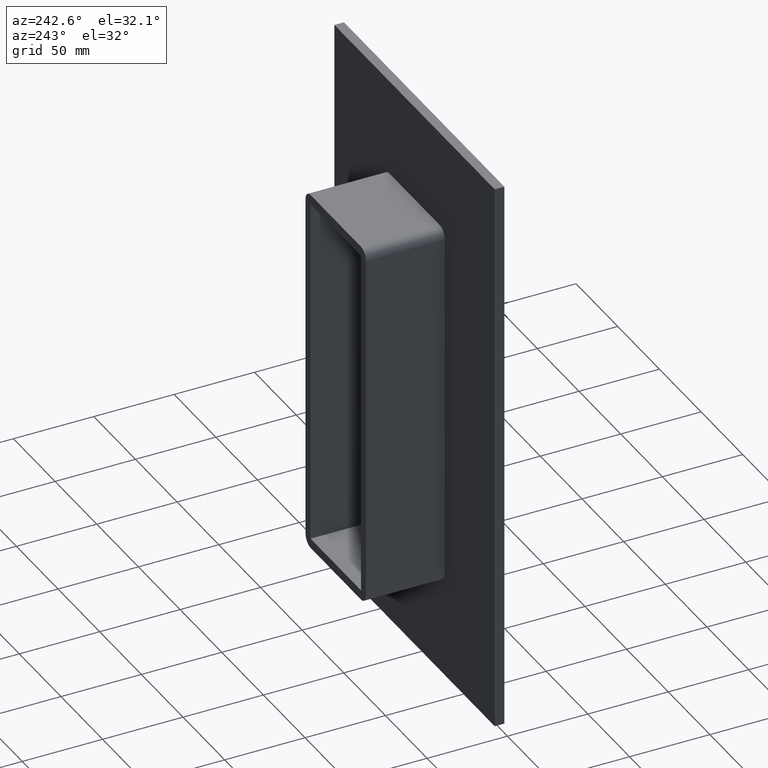
[diagram: clean part render]
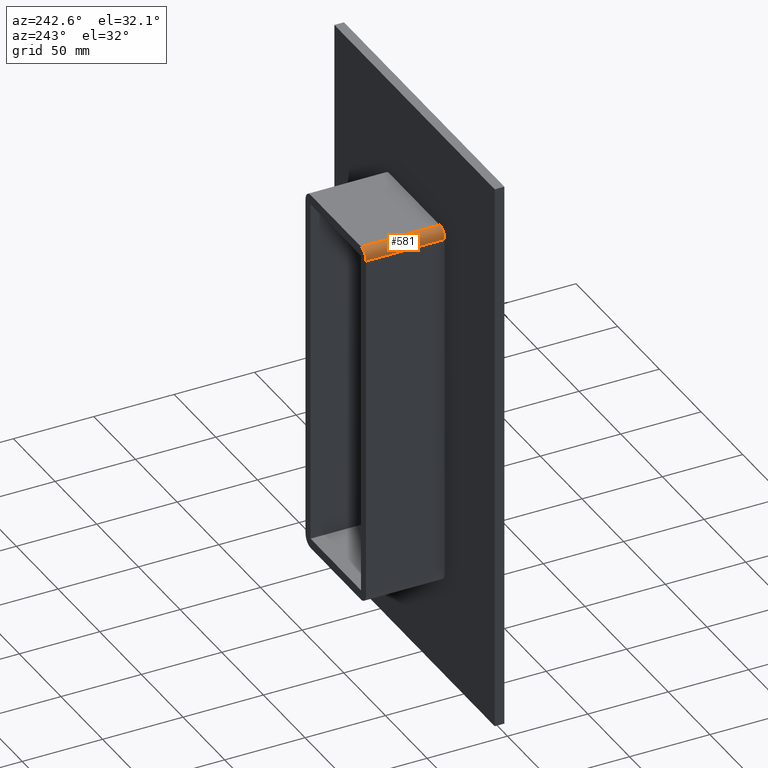
[diagram: same view with one face highlighted and labeled with its STEP entity id]
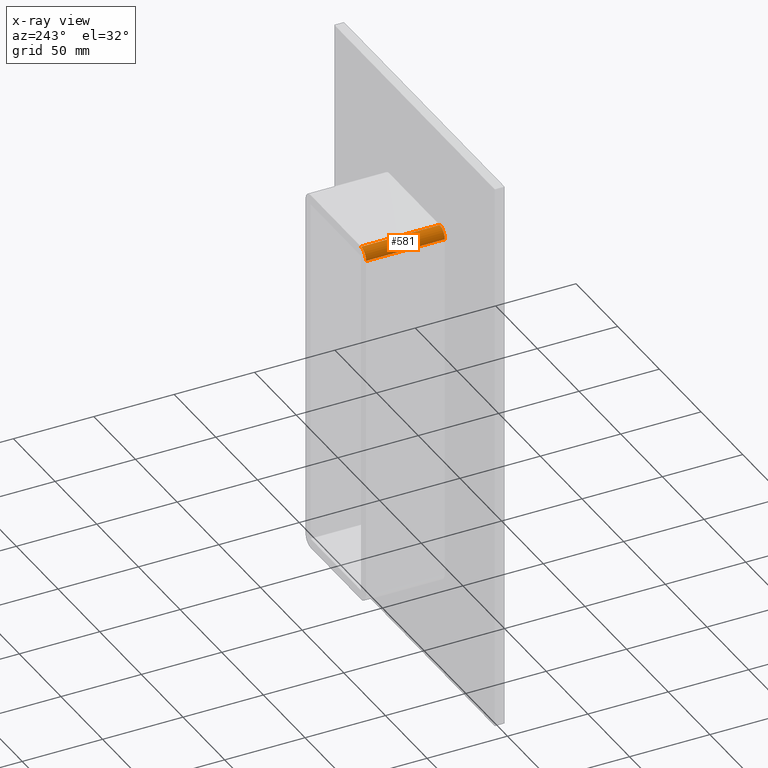
[diagram: x-ray of the same camera — body ghosted, the highlighted face saturated]
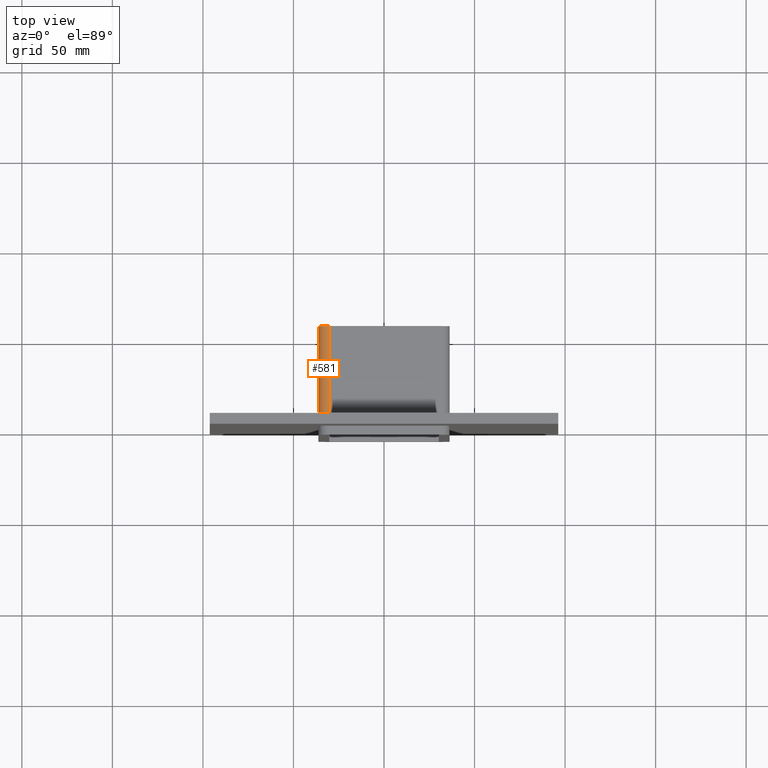
[diagram: same view with one face highlighted and labeled with its STEP entity id]
A machine part, auxiliary view. The second image highlights one B-rep face of the part: STEP entity #581.
The next image is the same camera in x-ray: the body ghosted, the highlighted face saturated — about 0% of this face is hidden behind the body in this view.
A second angle (top view) of the same face is appended — the face is thin or edge-on in the first view.
In plain terms, the highlighted cylindrical surface (edge-blend (fillet) strip) has radius 6 mm, axis along (0, 1, 0).
Its self-contained STEP definition (entity closure, byte-faithful):
#118=CARTESIAN_POINT('',(-30.249999999999986,6.000000000000001,115.00000000000003));
#119=VERTEX_POINT('',#118);
#126=CARTESIAN_POINT('',(-36.25,6.000000000000001,109.00000000000006));
#127=VERTEX_POINT('',#126);
#128=CARTESIAN_POINT('',(-30.249999999999986,6.000000000000001,109.00000000000006));
#129=DIRECTION('',(0.0,1.0,0.0));
#130=DIRECTION('',(-1.0,0.0,0.0));
#131=AXIS2_PLACEMENT_3D('',#128,#129,#130);
#132=CIRCLE('',#131,6.000000000000014);
#133=EDGE_CURVE('',#127,#119,#132,.T.);
#490=CARTESIAN_POINT('',(-36.25,55.0,109.00000000000006));
#491=VERTEX_POINT('',#490);
#492=CARTESIAN_POINT('',(-36.25,6.000000000000001,109.00000000000006));
#493=DIRECTION('',(0.0,1.0,0.0));
#494=VECTOR('',#493,49.0);
#495=LINE('',#492,#494);
#496=EDGE_CURVE('',#127,#491,#495,.T.);
#557=CARTESIAN_POINT('',(-30.249999999999986,0.0,109.00000000000006));
#558=DIRECTION('',(0.0,1.0,0.0));
#559=DIRECTION('',(-1.0,0.0,0.0));
#560=AXIS2_PLACEMENT_3D('',#557,#558,#559);
#561=CYLINDRICAL_SURFACE('',#560,6.000000000000014);
#562=ORIENTED_EDGE('',*,*,#133,.T.);
#563=CARTESIAN_POINT('',(-30.249999999999986,55.0,115.00000000000003));
#564=VERTEX_POINT('',#563);
#565=CARTESIAN_POINT('',(-30.249999999999986,6.000000000000001,115.00000000000003));
#566=DIRECTION('',(0.0,1.0,0.0));
#567=VECTOR('',#566,49.0);
#568=LINE('',#565,#567);
#569=EDGE_CURVE('',#119,#564,#568,.T.);
#570=ORIENTED_EDGE('',*,*,#569,.T.);
#571=CARTESIAN_POINT('',(-30.249999999999986,55.0,109.00000000000006));
#572=DIRECTION('',(0.0,1.0,0.0));
#573=DIRECTION('',(-1.0,0.0,0.0));
#574=AXIS2_PLACEMENT_3D('',#571,#572,#573);
#575=CIRCLE('',#574,6.000000000000014);
#576=EDGE_CURVE('',#491,#564,#575,.T.);
#577=ORIENTED_EDGE('',*,*,#576,.F.);
#578=ORIENTED_EDGE('',*,*,#496,.F.);
#579=EDGE_LOOP('',(#562,#570,#577,#578));
#580=FACE_OUTER_BOUND('',#579,.T.);
#581=ADVANCED_FACE('',(#580),#561,.T.);